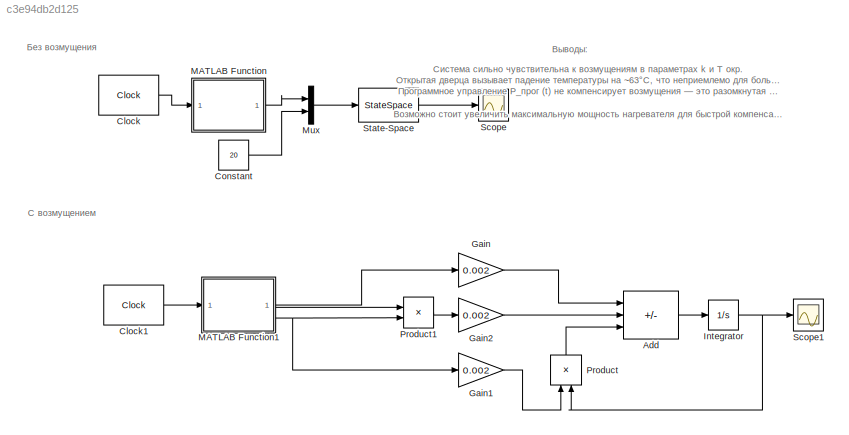
MODEL slx_c3e94db2d125
KIND model
CONFIG AbsTol = auto
CONFIG EnableMultiTasking = off
CONFIG FixedStep = auto
CONFIG MaxStep = auto
CONFIG MinStep = auto
CONFIG RelTol = 1e-3
CONFIG SampleTimeConstraint = Unconstrained
CONFIG SolverName = VariableStepAuto
CONFIG StartTime = 0.0
CONFIG StopTime = 2400.0
BLOCK [Sum] Add
  IconShape = rectangular
  Inputs = ++-
BLOCK [Clock] Clock
BLOCK [Clock] Clock1
BLOCK [Constant] Constant
  Value = 20
BLOCK [Gain] Gain
  Gain = 0.002
BLOCK [Gain] Gain1
  Gain = 0.002
BLOCK [Gain] Gain2
  Gain = 0.002
BLOCK [Integrator] Integrator
  InitialCondition = 20
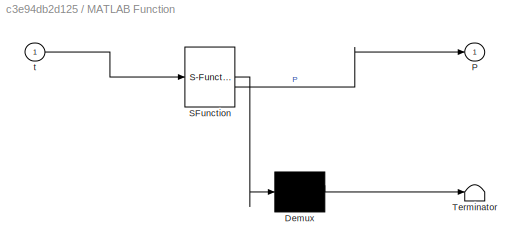
BLOCK [SubSystem] MATLAB Function
  ErrorFcn = Stateflow.Translate.translate
  PermitHierarchicalResolution = ExplicitOnly
  SFBlockType = MATLAB Function
  TreatAsAtomicUnit = on
BLOCK [Demux] MATLAB Function/ Demux 
  Outputs = 1
BLOCK [S-Function] MATLAB Function/ SFunction 
  EnableBusSupport = on
  FunctionName = sf_sfun
  PortCounts = [1 2]
  SFcnIsStateOwnerBlock = off
  SFunctionDeploymentMode = off
  Tag = Stateflow S-Function 2
BLOCK [Terminator] MATLAB Function/ Terminator 
BLOCK [Outport] MATLAB Function/P
BLOCK [Inport] MATLAB Function/t
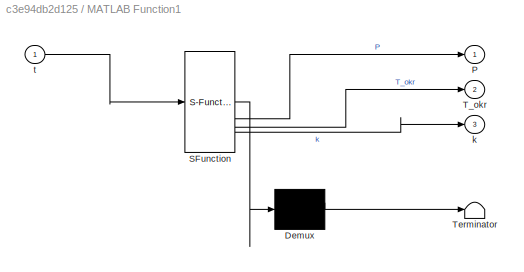
BLOCK [SubSystem] MATLAB Function1
  ErrorFcn = Stateflow.Translate.translate
  PermitHierarchicalResolution = ExplicitOnly
  SFBlockType = MATLAB Function
  TreatAsAtomicUnit = on
BLOCK [Demux] MATLAB Function1/ Demux 
  Outputs = 1
BLOCK [S-Function] MATLAB Function1/ SFunction 
  EnableBusSupport = on
  FunctionName = sf_sfun
  PortCounts = [1 4]
  SFcnIsStateOwnerBlock = off
  SFunctionDeploymentMode = off
  Tag = Stateflow S-Function 1
BLOCK [Terminator] MATLAB Function1/ Terminator 
BLOCK [Outport] MATLAB Function1/P
BLOCK [Outport] MATLAB Function1/T_okr
  Port = 2
BLOCK [Outport] MATLAB Function1/k
  Port = 3
BLOCK [Inport] MATLAB Function1/t
BLOCK [Mux] Mux
  DisplayOption = bar
  Inputs = 2
BLOCK [Product] Product
  NameLocation = right
BLOCK [Product] Product1
BLOCK [Scope] Scope
  Floating = off
  NumInputPorts = 1
  ScopeSpecificationString = Simulink.scopes.TimeScopeBlockCfg('CurrentConfiguration', extmgr.ConfigurationSet(extmgr.Configuration('Core','General UI',true),extmgr.Configuration('Core','Source UI',true),extmgr.Configuration('Sources','WiredSimulink',true),extmgr.Configuration('Visuals','Time Domain',true,'SerializedDisplays',{struct('MinYLimReal','10.00000','MaxYLimReal','110.00000','YLabelReal','','MinYLimMag','10.00000','M...<+1457ch>
BLOCK [Scope] Scope1
  Floating = off
  NumInputPorts = 1
  ScopeSpecificationString = Simulink.scopes.TimeScopeBlockCfg('CurrentConfiguration', extmgr.ConfigurationSet(extmgr.Configuration('Core','General UI',true),extmgr.Configuration('Core','Source UI',true),extmgr.Configuration('Sources','WiredSimulink',true,'DataLoggingVariableName','ScopeData1'),extmgr.Configuration('Visuals','Time Domain',true,'SerializedDisplays',{struct('MinYLimReal','10.00000','MaxYLimReal','110.00000','YL...<+1468ch>
BLOCK [StateSpace] State-Space
  A = -0.02
  B = [0.002, 0.02]
  D = [0,0]
  InitialCondition = 20
ANNOTATION (root): Система сильно чувствительна к возмущениям в параметрах k и T окр. Открытая дверца вызывает падение температуры на ~63°C, что неприемлемо для большинства термостатированных процессов. Программное управление P_прог (t) не компенсирует возмущения — это разомкнутая система, не имеющая обратной связи. Возможно стоит увеличить максимальную мощность нагревателя для быстрой компенсации теплопотерь.
ANNOTATION (root): Без возмущения
ANNOTATION (root): Выводы:
ANNOTATION (root): С возмущением
LINE Add:1 -> Integrator:1
LINE Clock1:1 -> MATLAB Function1:1
LINE Clock:1 -> MATLAB Function:1
LINE Constant:1 -> Mux:2
LINE Gain1:1 -> Product:1
LINE Gain2:1 -> Add:2
LINE Gain:1 -> Add:1
NET Integrator:1 -> Product:2, Scope1:1
LINE MATLAB Function1:1 -> Gain:1
LINE MATLAB Function1:2 -> Product1:1
NET MATLAB Function1:3 -> Gain1:1, Product1:2
LINE MATLAB Function:1 -> Mux:1
LINE Mux:1 -> State-Space:1
LINE Product1:1 -> Gain2:1
LINE Product:1 -> Add:3
LINE State-Space:1 -> Scope:1
note: NET lines group one-source signal fan-out (src -> all destinations, sorted); 1:1 wires keep LINE
CHART MATLAB Function1 states=1 transitions=1
  STATE_LABEL 'eML_blk_kernel()'
  STATE_LABEL 'SCRIPT:\nfunction [P, T_okr, k] = P_prog(t)\n    if t <= 600\n        P = 200/3 + (4/3)*t;\n    else \n        P = 800;\n    end\n\n    if (t < 900) || (t > 1020)\n        T_okr = 20;\n        k = 10;\n    else\n        T_okr = 5;\n        k = 25;\n    end\nend\n'
CHART MATLAB Function states=1 transitions=1
  STATE_LABEL 'eML_blk_kernel()'
  STATE_LABEL 'SCRIPT:\nfunction P = P_prog(t)\n    if t <= 600\n        P = 200/3 + (4/3)*t;\n    else \n        P = 800;\n    end\nend\n\n'
CHART  states=0 transitions=0
CHART  states=0 transitions=0
